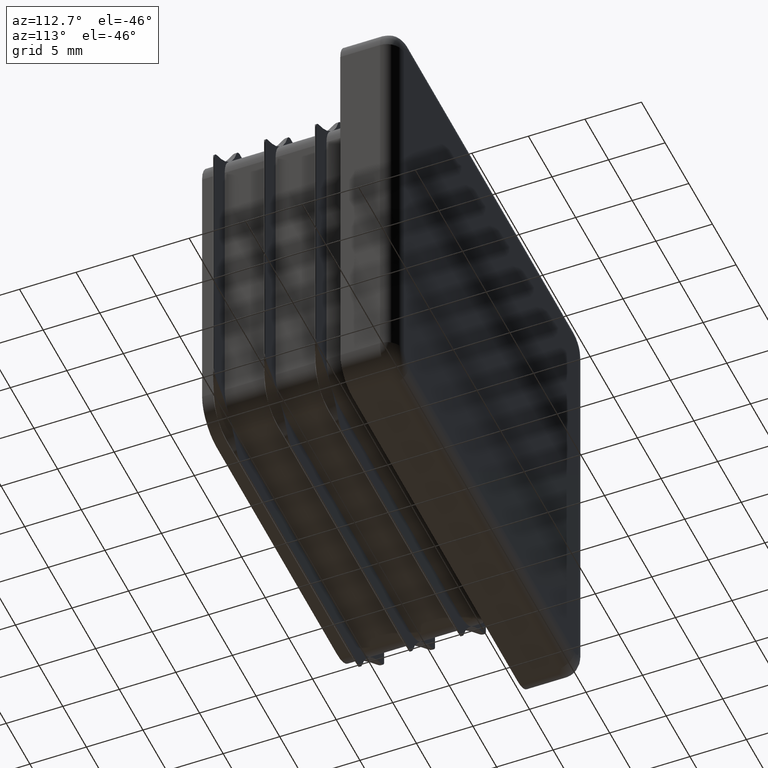
[diagram: clean part render]
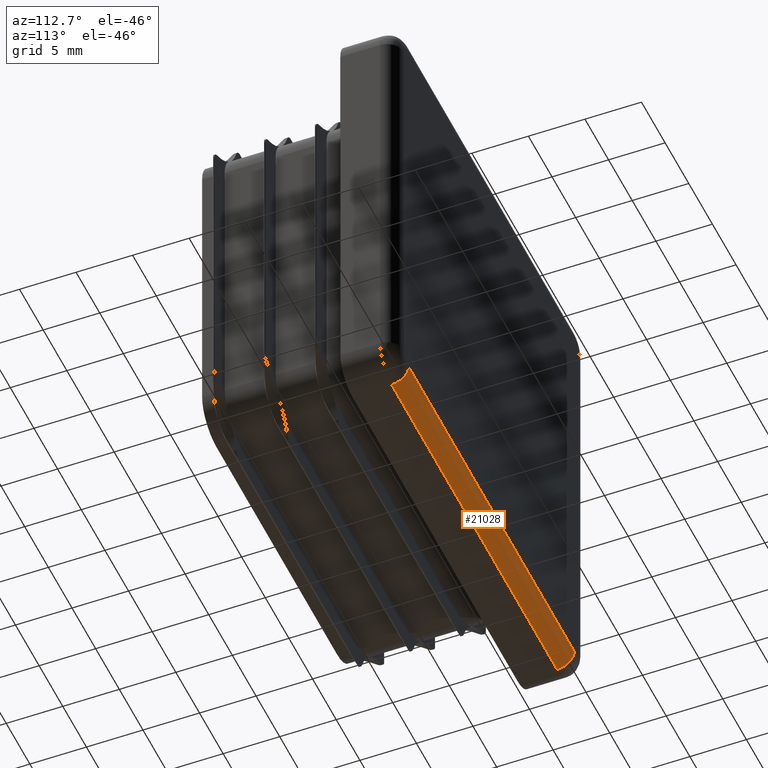
[diagram: same view with one face highlighted and labeled with its STEP entity id]
A machine part, auxiliary view. The second image highlights one B-rep face of the part: STEP entity #21028.
In plain terms, the highlighted cylindrical surface (edge-blend (fillet) strip) has radius 1.5 mm, axis along (1, 0, 0).
Its self-contained STEP definition (entity closure, byte-faithful):
#483 = CIRCLE ( 'NONE', #21857, 1.500000000000001332 ) ;
#899 = CARTESIAN_POINT ( 'NONE',  ( -17.49999999999999645, 3.500000000000000000, -19.99999999999999645 ) ) ;
#1273 = EDGE_CURVE ( 'NONE', #2897, #15196, #2217, .T. ) ;
#1549 = DIRECTION ( 'NONE',  ( 0.000000000000000000, 0.000000000000000000, -1.000000000000000000 ) ) ;
#2217 = LINE ( 'NONE', #13955, #3532 ) ;
#2424 = AXIS2_PLACEMENT_3D ( 'NONE', #3523, #5186, #16999 ) ;
#2612 = CARTESIAN_POINT ( 'NONE',  ( 17.50000000000000711, 3.500000000000000000, -18.49999999999999645 ) ) ;
#2897 = VERTEX_POINT ( 'NONE', #20326 ) ;
#2913 = ORIENTED_EDGE ( 'NONE', *, *, #6488, .F. ) ;
#3046 = CIRCLE ( 'NONE', #2424, 1.500000000000001332 ) ;
#3523 = CARTESIAN_POINT ( 'NONE',  ( -17.49999999999999645, 3.500000000000000000, -18.49999999999999645 ) ) ;
#3532 = VECTOR ( 'NONE', #3810, 1000.000000000000000 ) ;
#3810 = DIRECTION ( 'NONE',  ( -1.000000000000000000, 0.000000000000000000, 0.000000000000000000 ) ) ;
#4461 = AXIS2_PLACEMENT_3D ( 'NONE', #21699, #20134, #1549 ) ;
#4734 = VECTOR ( 'NONE', #7145, 1000.000000000000000 ) ;
#5186 = DIRECTION ( 'NONE',  ( 1.000000000000000000, 0.000000000000000000, 0.000000000000000000 ) ) ;
#6488 = EDGE_CURVE ( 'NONE', #10934, #2897, #483, .T. ) ;
#6664 = EDGE_CURVE ( 'NONE', #17363, #10934, #19036, .T. ) ;
#7088 = ORIENTED_EDGE ( 'NONE', *, *, #10507, .T. ) ;
#7145 = DIRECTION ( 'NONE',  ( 1.000000000000000000, -0.000000000000000000, -0.000000000000000000 ) ) ;
#7732 = ORIENTED_EDGE ( 'NONE', *, *, #1273, .F. ) ;
#10507 = EDGE_CURVE ( 'NONE', #17363, #15196, #3046, .T. ) ;
#10934 = VERTEX_POINT ( 'NONE', #21960 ) ;
#11520 = DIRECTION ( 'NONE',  ( 1.000000000000000000, -0.000000000000000000, 0.000000000000000000 ) ) ;
#11785 = CYLINDRICAL_SURFACE ( 'NONE', #4461, 1.500000000000001332 ) ;
#13430 = EDGE_LOOP ( 'NONE', ( #7088, #7732, #2913, #19815 ) ) ;
#13955 = CARTESIAN_POINT ( 'NONE',  ( -17.49999999999999645, 5.000000000000000000, -18.49999999999999645 ) ) ;
#15196 = VERTEX_POINT ( 'NONE', #19866 ) ;
#15702 = CARTESIAN_POINT ( 'NONE',  ( 17.50000000000000711, 3.500000000000000000, -19.99999999999999645 ) ) ;
#16999 = DIRECTION ( 'NONE',  ( 0.000000000000000000, 0.000000000000000000, -1.000000000000000000 ) ) ;
#17363 = VERTEX_POINT ( 'NONE', #899 ) ;
#17617 = FACE_OUTER_BOUND ( 'NONE', #13430, .T. ) ;
#19036 = LINE ( 'NONE', #15702, #4734 ) ;
#19526 = DIRECTION ( 'NONE',  ( 0.000000000000000000, 0.000000000000000000, -1.000000000000000000 ) ) ;
#19815 = ORIENTED_EDGE ( 'NONE', *, *, #6664, .F. ) ;
#19866 = CARTESIAN_POINT ( 'NONE',  ( -17.49999999999999645, 5.000000000000000000, -18.49999999999999645 ) ) ;
#20134 = DIRECTION ( 'NONE',  ( 1.000000000000000000, 0.000000000000000000, 0.000000000000000000 ) ) ;
#20326 = CARTESIAN_POINT ( 'NONE',  ( 17.50000000000000711, 5.000000000000000000, -18.50000000000000000 ) ) ;
#21028 = ADVANCED_FACE ( 'NONE', ( #17617 ), #11785, .T. ) ;
#21699 = CARTESIAN_POINT ( 'NONE',  ( 0.000000000000000000, 3.500000000000000000, -18.49999999999999645 ) ) ;
#21857 = AXIS2_PLACEMENT_3D ( 'NONE', #2612, #11520, #19526 ) ;
#21960 = CARTESIAN_POINT ( 'NONE',  ( 17.50000000000000711, 3.500000000000000000, -19.99999999999999645 ) ) ;